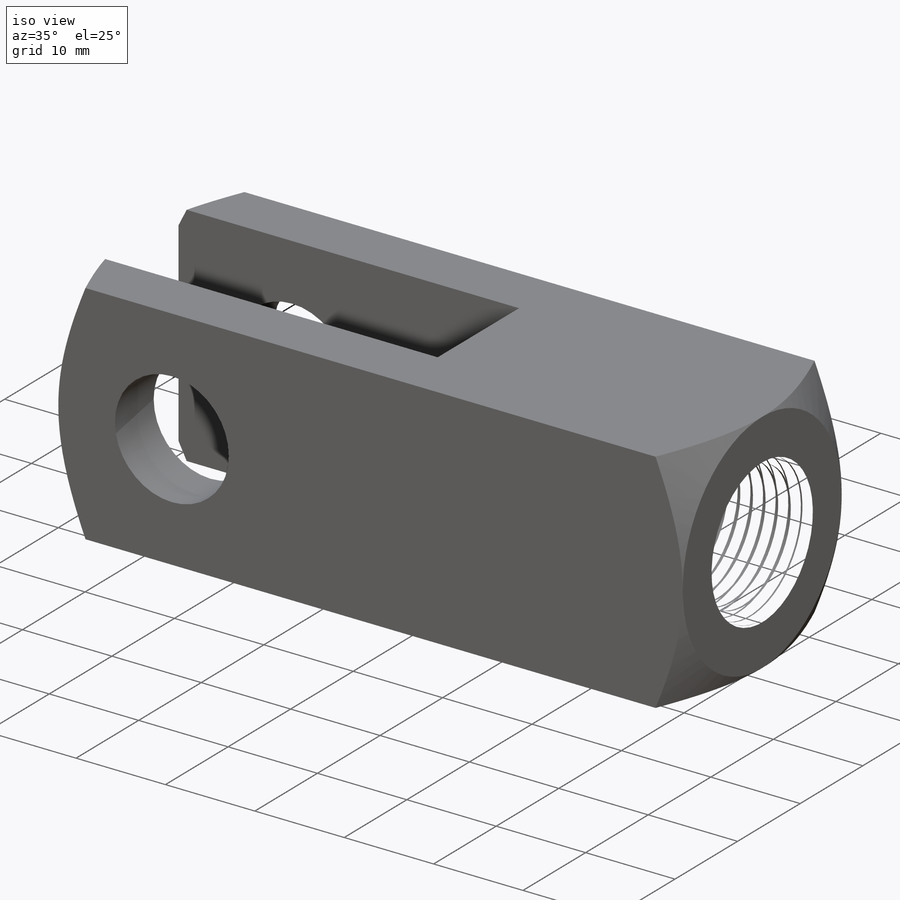
[diagram: iso view]
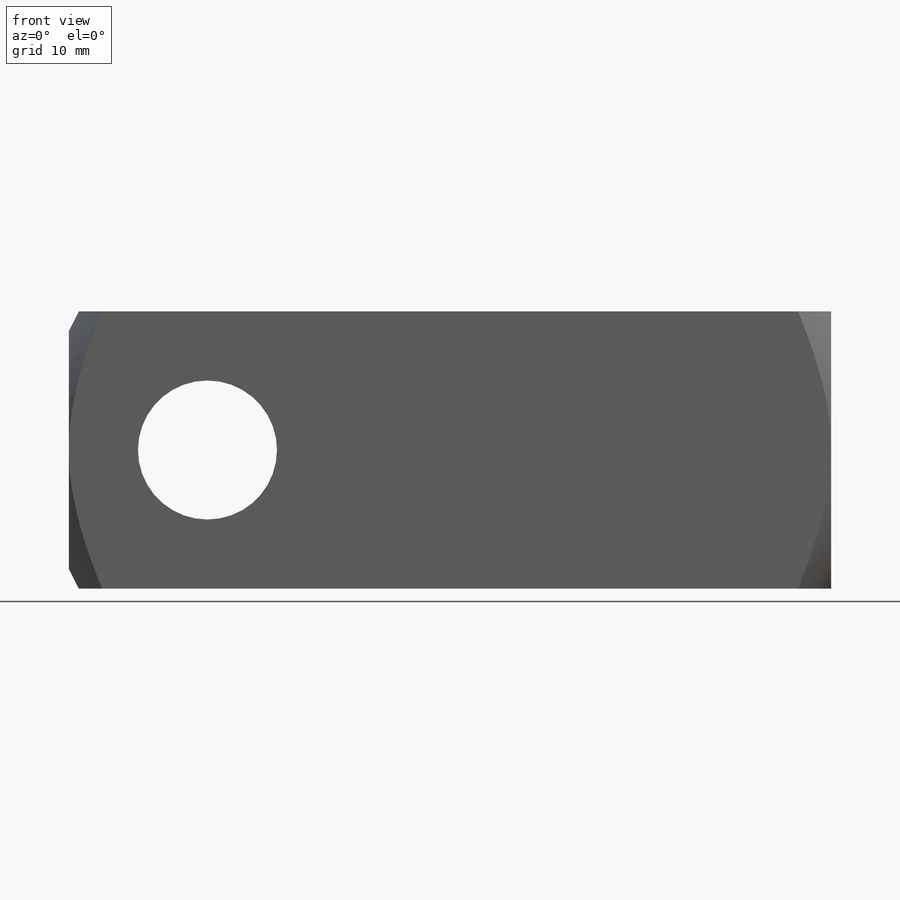
[diagram: front view]
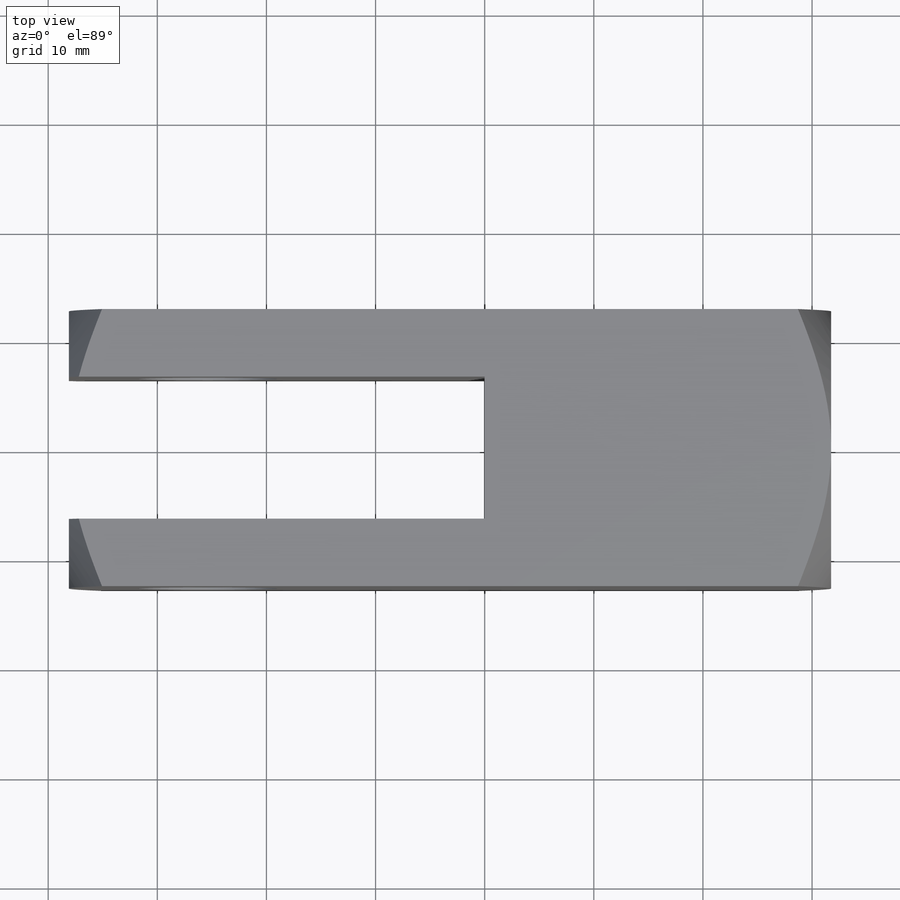
[diagram: top view]
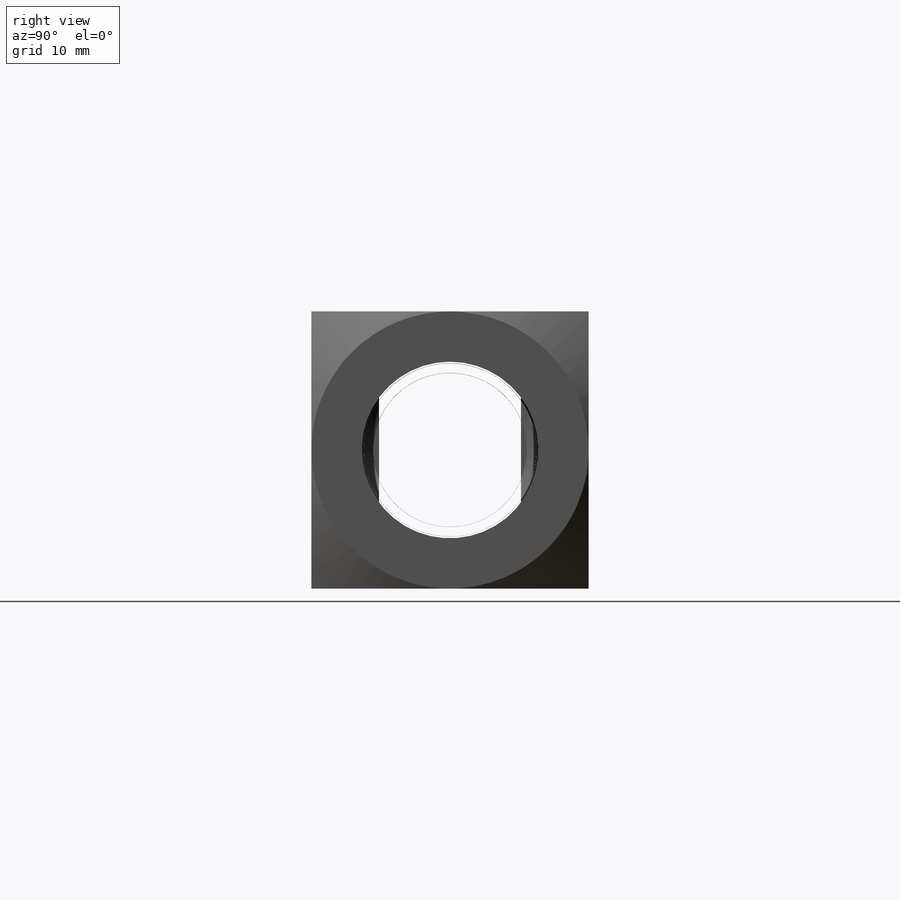
[diagram: right view]
SOLIDWORKS PART (.sldprt)
format: sldprt  version: not decoded by parser v0  size: 1,679,360 bytes
history: native  units: mm
features: sketch x20, cut_extrude x9, extrude x3, helix x2, sweep x2, material x1, revolve x1, plane x1, mirror x1 (+15 scaffold rows collapsed)
feature tree (55):
  scaffold x15  (default folders/planes/origin — collapsed)
  material  "Material <not specified>"
  sketch  "Sketch1"  dims[c1.D=11.176mm c1.I=9.652mm c2.D=11.176mm c2.Pin Size=12.7381mm c2.B=35.052mm c2.L=3.302mm c2.A=21.082mm c2.H=2.286mm c2.G=14.224mm c2.L1=57.15mm c3.L=69.85mm c3.H=25.4mm c3.L2=31.75mm c3.Thread OD=15.875mm]
  sketch  "Sketch2"  dims[W2=35.052mm W1=13.0175mm W=25.4mm]
  extrude  "Boss-Extrude1"  [1 undecoded]
  sketch  "Sketch3"
  cut_extrude  "Cut-Extrude1"  [1 undecoded]
  sketch  "Sketch4"  dims[D1=0.0mm]
  cut_extrude  "Cut-Extrude2"  [1 undecoded]
  sketch  "Sketch5"
  cut_extrude  "Cut-Extrude3"  [1 undecoded]
  sketch  "Sketch6"  dims[D1=~0.881944mm]
  cut_extrude  "Cut-Extrude4"  [1 undecoded]
  sketch  "Sketch7"  dims[D1=0.0mm]
  helix  "Helix/Spiral1"  Pitch=33.161111mm Height=33.161111mm
  sketch  "Sketch8"  dims[D1=~1.411111mm D2=~0.176389mm D3=~0.515556mm]
  sketch  "Sketch9"
  sketch  "SketchX"
  sketch  "SketchY"  dims[D1=9.652mm]
  sweep  "Cut-Sweep1"
  cut_extrude  "Cut-Extrude5"  [1 undecoded]
  sketch  "Sketch10"  dims[Chamfer=0.381mm Center Lg.=25.527mm Gap=1.2065mm Gap OD=10.0965mm]
  revolve  "Revolve1"  Angle=360deg
  plane  "Plane1"
  sketch  "Sketch11"  dims[c1.OD=25.4mm c1.ID=10.1092mm c1.D4=1.5875mm c1.D6=~6.64845mm c1.D7=~1.058333mm c1.D8=~0.926042mm c1.D9=~0.37719mm c1.D3=~2.506376mm c2.D3=30.0deg c2.D5=~1.583029mm c3.D5=30.0deg]
  extrude  "Boss-Extrude2"  Depth=1.1049mm
  mirror  "Mirror1"
  sketch  "Sketch12"  dims[Hex=23.876mm D1=0.0mm]
  extrude  "Boss-Extrude3"  Depth=9.652mm Nut Thickness=9.652mm
  sketch  "Sketch13"
  cut_extrude  "Cut-Extrude6"  [1 undecoded]
  sketch  "Sketch14"  dims[D1=0.0mm]
  cut_extrude  "Cut-Extrude7"  [1 undecoded]
  sketch  "Sketch15"  dims[D1=0.0mm]
  helix  "Helix/Spiral2"  Pitch=20.715111mm
  sweep  "Cut-Sweep2"
  sketch  "Sketch8<2>"
  sketch  "Sketch16"  dims[D1=0.0mm]
  cut_extrude  "Cut-Extrude8"  [1 undecoded]
  sketch  "Sketch17"  dims[c1.D2=~2.498926mm c2.D2=30.0deg c2.D1=0.0mm]
  cut_extrude  "Cut-Extrude9"  [1 undecoded]
decode coverage: 19 of 38 modeling features carry decoded parameters
note: ~ marks probable driven/reference dimensions
note: 10 parameter values undecoded
summary: no parameter record found for 10 features
note: suppression state not decoded; provenance and decode notes live in map.json
